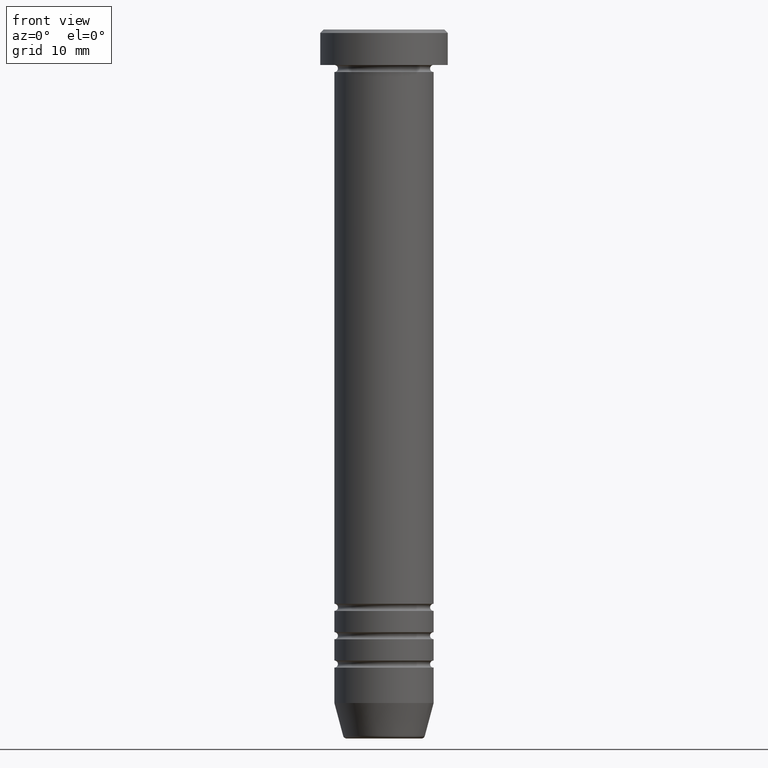
[diagram: clean part render]
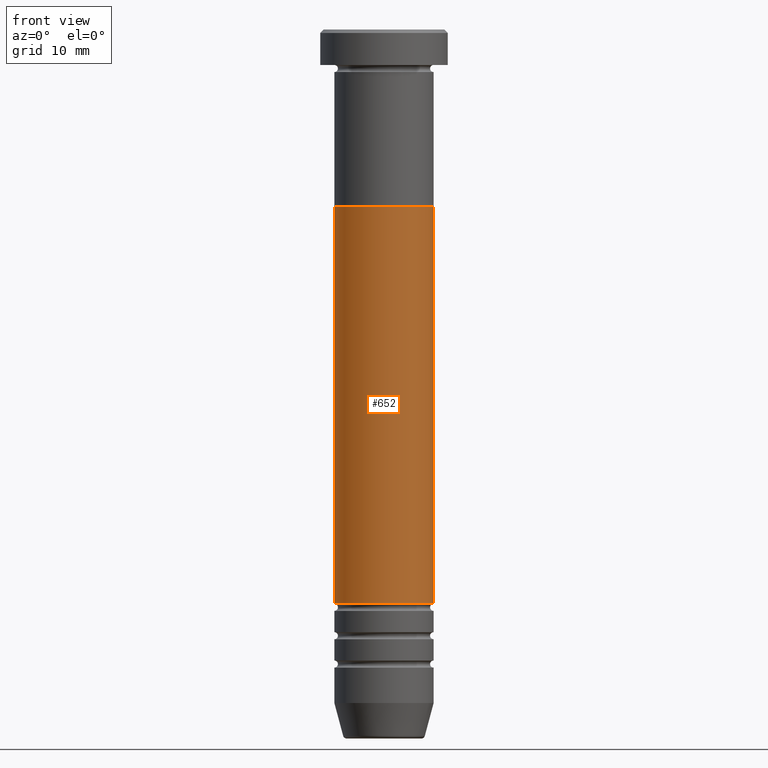
[diagram: same view with one face highlighted and labeled with its STEP entity id]
A machine part, front view. The second image highlights one B-rep face of the part: STEP entity #652.
In plain terms, the highlighted cylindrical surface (partial cylindrical patch) has radius 7 mm, axis along (-0, -0, 1).
Its self-contained STEP definition (entity closure, byte-faithful):
#17 = VERTEX_POINT ( 'NONE', #664 ) ;
#23 = LINE ( 'NONE', #921, #251 ) ;
#33 = CARTESIAN_POINT ( 'NONE',  ( 0.000000000000000000, 0.000000000000000000, -81.00000000000000000 ) ) ;
#44 = DIRECTION ( 'NONE',  ( -0.000000000000000000, -0.000000000000000000, 1.000000000000000000 ) ) ;
#52 = VERTEX_POINT ( 'NONE', #658 ) ;
#86 = EDGE_CURVE ( 'NONE', #410, #52, #287, .T. ) ;
#91 = CYLINDRICAL_SURFACE ( 'NONE', #473, 6.999999999999996447 ) ;
#148 = EDGE_CURVE ( 'NONE', #52, #17, #797, .T. ) ;
#166 = ORIENTED_EDGE ( 'NONE', *, *, #148, .F. ) ;
#188 = AXIS2_PLACEMENT_3D ( 'NONE', #33, #924, #506 ) ;
#250 = CARTESIAN_POINT ( 'NONE',  ( -6.999999999999992895, 8.572527594031466287E-16, -81.00000000000000000 ) ) ;
#251 = VECTOR ( 'NONE', #381, 1000.000000000000000 ) ;
#269 = VECTOR ( 'NONE', #278, 1000.000000000000000 ) ;
#278 = DIRECTION ( 'NONE',  ( -0.000000000000000000, -0.000000000000000000, 1.000000000000000000 ) ) ;
#287 = LINE ( 'NONE', #470, #269 ) ;
#304 = FACE_OUTER_BOUND ( 'NONE', #826, .T. ) ;
#364 = DIRECTION ( 'NONE',  ( 1.000000000000000000, 0.000000000000000000, 0.000000000000000000 ) ) ;
#371 = CARTESIAN_POINT ( 'NONE',  ( 6.999999999999992895, 0.000000000000000000, -81.00000000000000000 ) ) ;
#380 = ORIENTED_EDGE ( 'NONE', *, *, #672, .T. ) ;
#381 = DIRECTION ( 'NONE',  ( -0.000000000000000000, -0.000000000000000000, 1.000000000000000000 ) ) ;
#410 = VERTEX_POINT ( 'NONE', #250 ) ;
#419 = DIRECTION ( 'NONE',  ( 1.000000000000000000, 0.000000000000000000, 0.000000000000000000 ) ) ;
#434 = EDGE_CURVE ( 'NONE', #455, #17, #23, .T. ) ;
#455 = VERTEX_POINT ( 'NONE', #371 ) ;
#470 = CARTESIAN_POINT ( 'NONE',  ( -6.999999999999996447, 8.572527594031468259E-16, 0.000000000000000000 ) ) ;
#473 = AXIS2_PLACEMENT_3D ( 'NONE', #513, #993, #419 ) ;
#506 = DIRECTION ( 'NONE',  ( 1.000000000000000000, 0.000000000000000000, 0.000000000000000000 ) ) ;
#513 = CARTESIAN_POINT ( 'NONE',  ( 0.000000000000000000, 0.000000000000000000, 0.000000000000000000 ) ) ;
#652 = ADVANCED_FACE ( 'NONE', ( #304 ), #91, .T. ) ;
#658 = CARTESIAN_POINT ( 'NONE',  ( -7.000000000000000000, 8.572527594031472204E-16, -25.00000000000000000 ) ) ;
#664 = CARTESIAN_POINT ( 'NONE',  ( 7.000000000000000000, 0.000000000000000000, -25.00000000000000000 ) ) ;
#672 = EDGE_CURVE ( 'NONE', #410, #455, #870, .T. ) ;
#737 = ORIENTED_EDGE ( 'NONE', *, *, #434, .T. ) ;
#797 = CIRCLE ( 'NONE', #855, 7.000000000000000000 ) ;
#826 = EDGE_LOOP ( 'NONE', ( #939, #380, #737, #166 ) ) ;
#855 = AXIS2_PLACEMENT_3D ( 'NONE', #1029, #44, #364 ) ;
#870 = CIRCLE ( 'NONE', #188, 6.999999999999992895 ) ;
#921 = CARTESIAN_POINT ( 'NONE',  ( 6.999999999999996447, 0.000000000000000000, 0.000000000000000000 ) ) ;
#924 = DIRECTION ( 'NONE',  ( -0.000000000000000000, -0.000000000000000000, 1.000000000000000000 ) ) ;
#939 = ORIENTED_EDGE ( 'NONE', *, *, #86, .F. ) ;
#993 = DIRECTION ( 'NONE',  ( -0.000000000000000000, -0.000000000000000000, 1.000000000000000000 ) ) ;
#1029 = CARTESIAN_POINT ( 'NONE',  ( 0.000000000000000000, 0.000000000000000000, -25.00000000000000000 ) ) ;